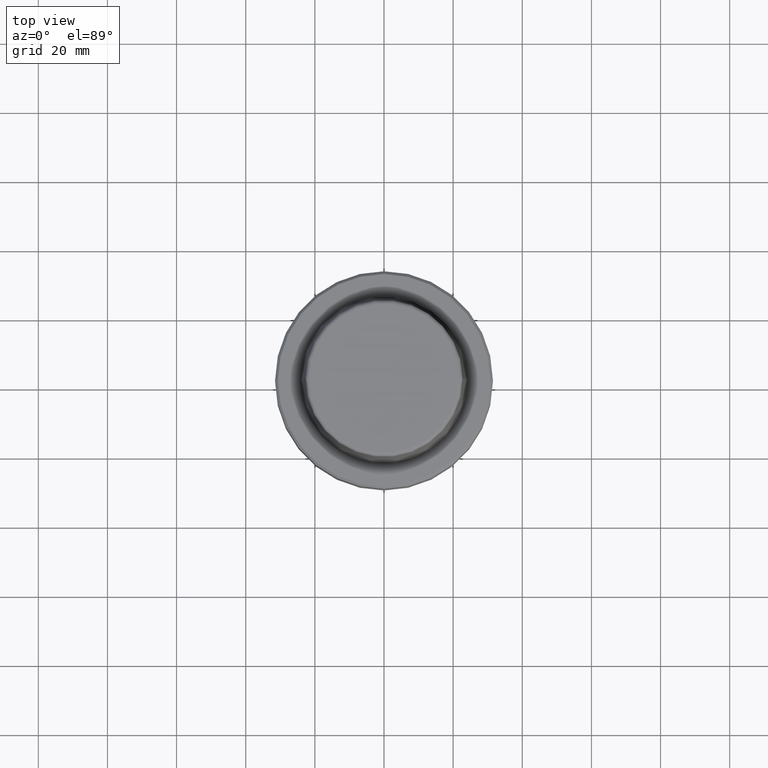
[diagram: clean part render]
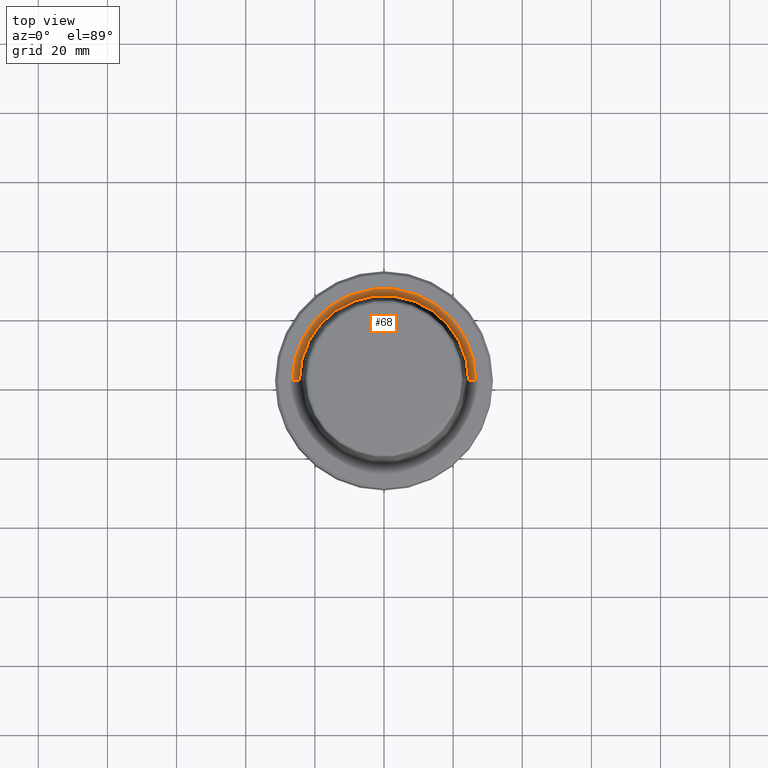
[diagram: same view with one face highlighted and labeled with its STEP entity id]
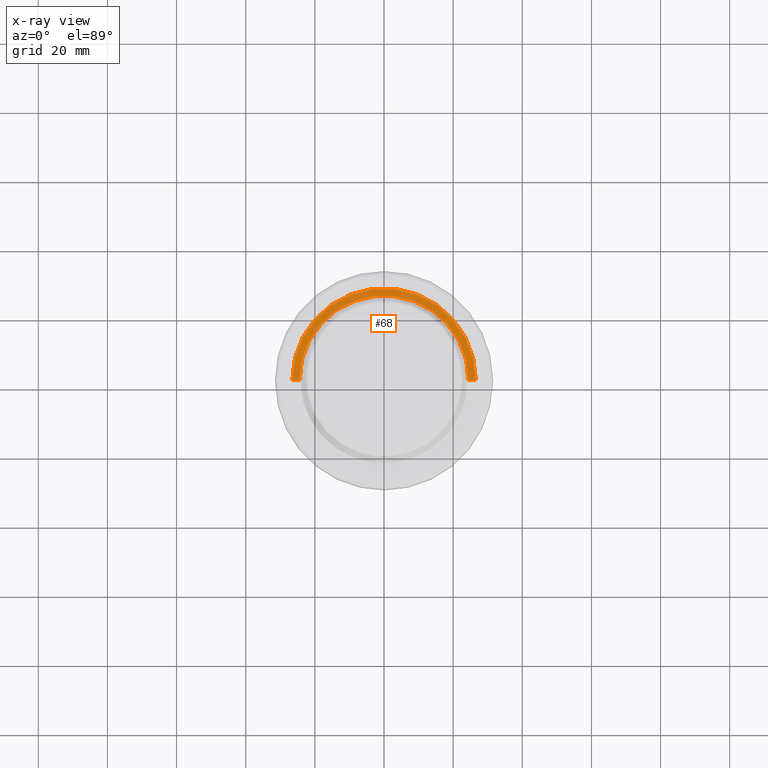
[diagram: x-ray of the same camera — body ghosted, the highlighted face saturated]
A machine part, top view. The second image highlights one B-rep face of the part: STEP entity #68.
The next image is the same camera in x-ray: the body ghosted, the highlighted face saturated — about 0% of this face is hidden behind the body in this view.
In plain terms, the highlighted conical surface has half-angle 80 deg.
Its self-contained STEP definition (entity closure, byte-faithful):
#59 = CARTESIAN_POINT ( 'NONE',  ( -26.52499999999999900, 3.248375634738354300E-015, 0.0000000000000000000 ) ) ;
#64 = ORIENTED_EDGE ( 'NONE', *, *, #554, .F. ) ;
#68 = ADVANCED_FACE ( 'NONE', ( #639 ), #372, .F. ) ;
#86 = DIRECTION ( 'NONE',  ( -0.0000000000000000000, -0.0000000000000000000, 1.000000000000000000 ) ) ;
#98 = AXIS2_PLACEMENT_3D ( 'NONE', #1055, #86, #170 ) ;
#101 = EDGE_CURVE ( 'NONE', #1145, #166, #432, .T. ) ;
#111 = DIRECTION ( 'NONE',  ( 1.000000000000000000, 0.0000000000000000000, 0.0000000000000000000 ) ) ;
#137 = ORIENTED_EDGE ( 'NONE', *, *, #637, .F. ) ;
#166 = VERTEX_POINT ( 'NONE', #744 ) ;
#170 = DIRECTION ( 'NONE',  ( 1.000000000000000000, 0.0000000000000000000, 0.0000000000000000000 ) ) ;
#214 = LINE ( 'NONE', #59, #1126 ) ;
#296 = CIRCLE ( 'NONE', #98, 26.52499999999999900 ) ;
#303 = CARTESIAN_POINT ( 'NONE',  ( 24.47682408883346700, 0.0000000000000000000, -0.3611486743758107700 ) ) ;
#315 = DIRECTION ( 'NONE',  ( -0.9848077530122074700, 1.206041662501897100E-016, 0.1736481776669334700 ) ) ;
#318 = AXIS2_PLACEMENT_3D ( 'NONE', #604, #1084, #111 ) ;
#321 = VERTEX_POINT ( 'NONE', #708 ) ;
#372 = CONICAL_SURFACE ( 'NONE', #935, 26.52499999999999900, 1.396263401595460500 ) ;
#394 = EDGE_CURVE ( 'NONE', #166, #1109, #296, .T. ) ;
#432 = LINE ( 'NONE', #1228, #1206 ) ;
#483 = ORIENTED_EDGE ( 'NONE', *, *, #101, .T. ) ;
#554 = EDGE_CURVE ( 'NONE', #1145, #321, #628, .T. ) ;
#587 = DIRECTION ( 'NONE',  ( 0.9848077530122074700, 0.0000000000000000000, 0.1736481776669334700 ) ) ;
#604 = CARTESIAN_POINT ( 'NONE',  ( 0.0000000000000000000, 0.0000000000000000000, -0.3611486743758107700 ) ) ;
#628 = CIRCLE ( 'NONE', #318, 24.47682408883346700 ) ;
#637 = EDGE_CURVE ( 'NONE', #321, #1109, #214, .T. ) ;
#639 = FACE_OUTER_BOUND ( 'NONE', #824, .T. ) ;
#685 = DIRECTION ( 'NONE',  ( 1.000000000000000000, 0.0000000000000000000, 0.0000000000000000000 ) ) ;
#697 = CARTESIAN_POINT ( 'NONE',  ( -26.52499999999999900, 3.248375634738354300E-015, 0.0000000000000000000 ) ) ;
#708 = CARTESIAN_POINT ( 'NONE',  ( -24.47682408883346700, 3.122961031053313900E-015, -0.3611486743758107700 ) ) ;
#744 = CARTESIAN_POINT ( 'NONE',  ( 26.52499999999999900, 0.0000000000000000000, 0.0000000000000000000 ) ) ;
#779 = ORIENTED_EDGE ( 'NONE', *, *, #394, .T. ) ;
#824 = EDGE_LOOP ( 'NONE', ( #137, #64, #483, #779 ) ) ;
#900 = CARTESIAN_POINT ( 'NONE',  ( 0.0000000000000000000, 0.0000000000000000000, 0.0000000000000000000 ) ) ;
#935 = AXIS2_PLACEMENT_3D ( 'NONE', #900, #1100, #685 ) ;
#1055 = CARTESIAN_POINT ( 'NONE',  ( 0.0000000000000000000, 0.0000000000000000000, 0.0000000000000000000 ) ) ;
#1084 = DIRECTION ( 'NONE',  ( -0.0000000000000000000, -0.0000000000000000000, 1.000000000000000000 ) ) ;
#1100 = DIRECTION ( 'NONE',  ( -0.0000000000000000000, -0.0000000000000000000, 1.000000000000000000 ) ) ;
#1109 = VERTEX_POINT ( 'NONE', #697 ) ;
#1126 = VECTOR ( 'NONE', #315, 1000.000000000000200 ) ;
#1145 = VERTEX_POINT ( 'NONE', #303 ) ;
#1206 = VECTOR ( 'NONE', #587, 1000.000000000000200 ) ;
#1228 = CARTESIAN_POINT ( 'NONE',  ( 26.52499999999999900, 0.0000000000000000000, 0.0000000000000000000 ) ) ;